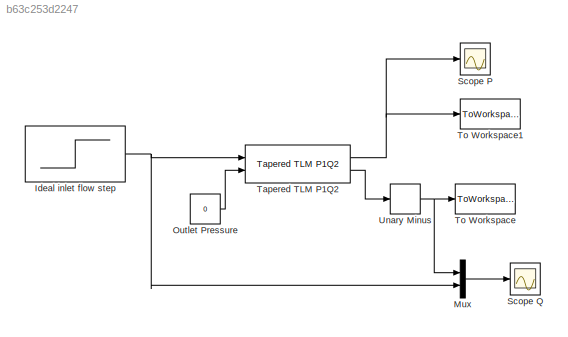
MODEL slx_b63c253d2247
KIND model
CONFIG AbsTol = auto
CONFIG FixedStep = auto
CONFIG MaxStep = auto
CONFIG MinStep = auto
CONFIG RelTol = 1e-6
CONFIG SampleTimeConstraint = Unconstrained
CONFIG Solver = ode23t
CONFIG SolverMode = Auto
CONFIG SolverName = ode23t
CONFIG StartTime = 0.0
CONFIG StopTime = 2
BLOCK [Step] Ideal inlet flow step
  After = 2.5e-4
  SampleTime = 0
BLOCK [Mux] Mux
  DisplayOption = bar
  Inputs = 2
  Ports = [2, 1]
BLOCK [Constant] Outlet Pressure
  Value = 0
BLOCK [Scope] Scope P
  Floating = off
  LimitDataPoints = off
  NumInputPorts = 1
  Ports = [1]
  SaveName = ScopeData1
  TimeRange = 2
  YMax = 2
  YMin = 0
  ZoomMode = xonly
BLOCK [Scope] Scope Q
  Floating = off
  LimitDataPoints = off
  NumInputPorts = 1
  Ports = [1]
  TimeRange = 0.0110489915596052
  YMax = 2e-07
  YMin = -2e-07
  ZoomMode = xonly
BLOCK [Reference] Tapered TLM P1Q2  REF=usask_tlm_lib/Tapered TLM P1Q2  (lib defined in slx_28caae7ed30f)
  D_1 = 40e-3
  D_2 = 42e-3
  K = 1.5e9
  L = 10
  Ports = [2, 2]
  SourceBlock = usask_tlm_lib/Tapered TLM P1Q2
  SourceType = Tapered Hydraulic Transmission Line (TLM)
  nu = 100e-6
  rho = 890
BLOCK [ToWorkspace] To Workspace
  FixptAsFi = on
  MaxDataPoints = inf
  Ports = [1]
  SampleTime = -1
  Save2DSignal = 3-D array (concatenate along third dimension)
  VariableName = Q_out
BLOCK [ToWorkspace] To Workspace1
  FixptAsFi = on
  MaxDataPoints = inf
  Ports = [1]
  SampleTime = -1
  Save2DSignal = 3-D array (concatenate along third dimension)
  VariableName = P_out
BLOCK [UnaryMinus] Unary Minus
NET Ideal inlet flow step:1 -> Mux:2, Tapered TLM P1Q2:1
LINE Mux:1 -> Scope Q:1
LINE Outlet Pressure:1 -> Tapered TLM P1Q2:2
NET Tapered TLM P1Q2:1 -> Scope P:1, To Workspace1:1
LINE Tapered TLM P1Q2:2 -> Unary Minus:1
NET Unary Minus:1 -> Mux:1, To Workspace:1
note: NET lines group one-source signal fan-out (src -> all destinations, sorted); 1:1 wires keep LINE
